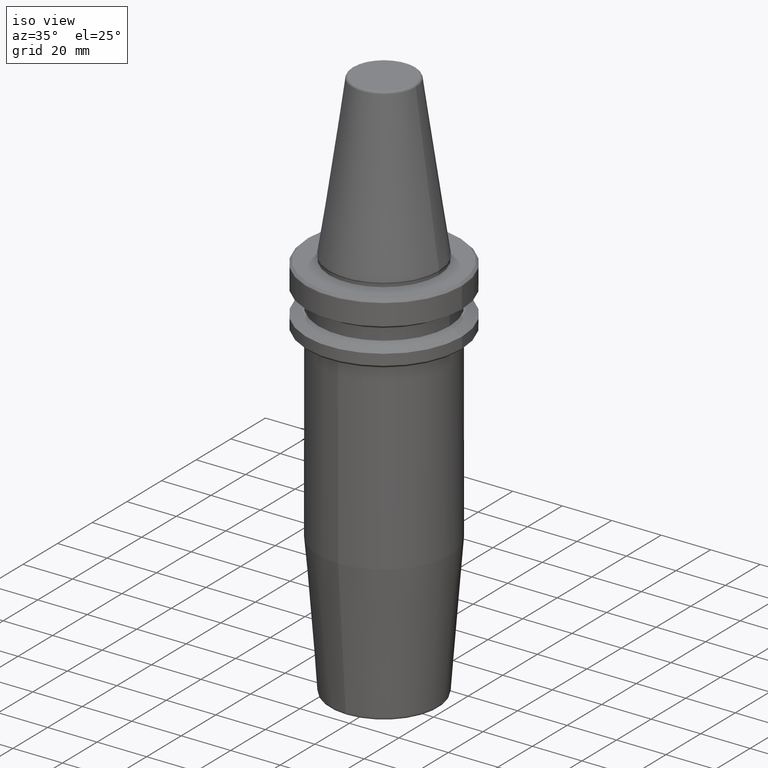
[diagram: clean part render]
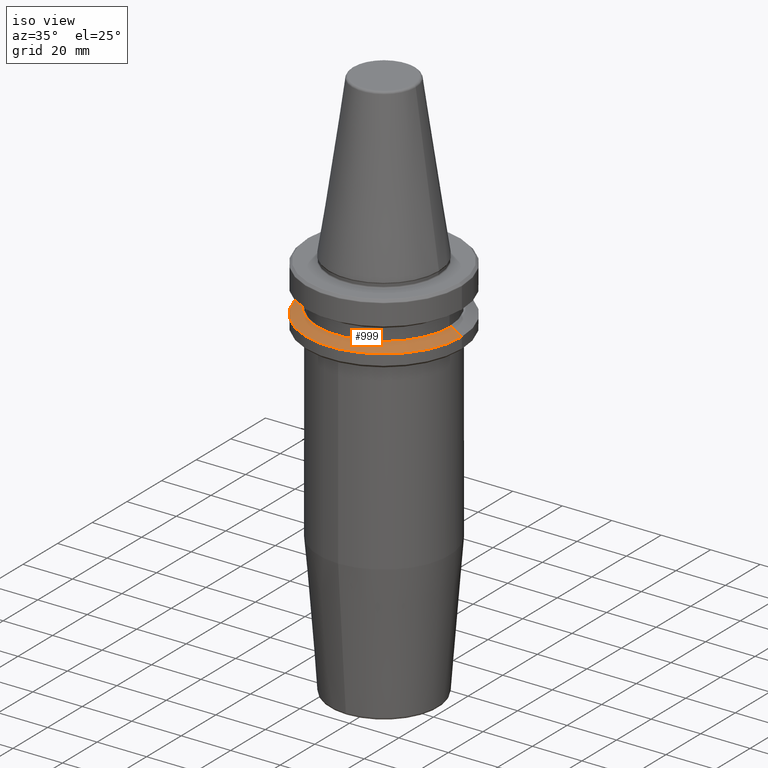
[diagram: same view with one face highlighted and labeled with its STEP entity id]
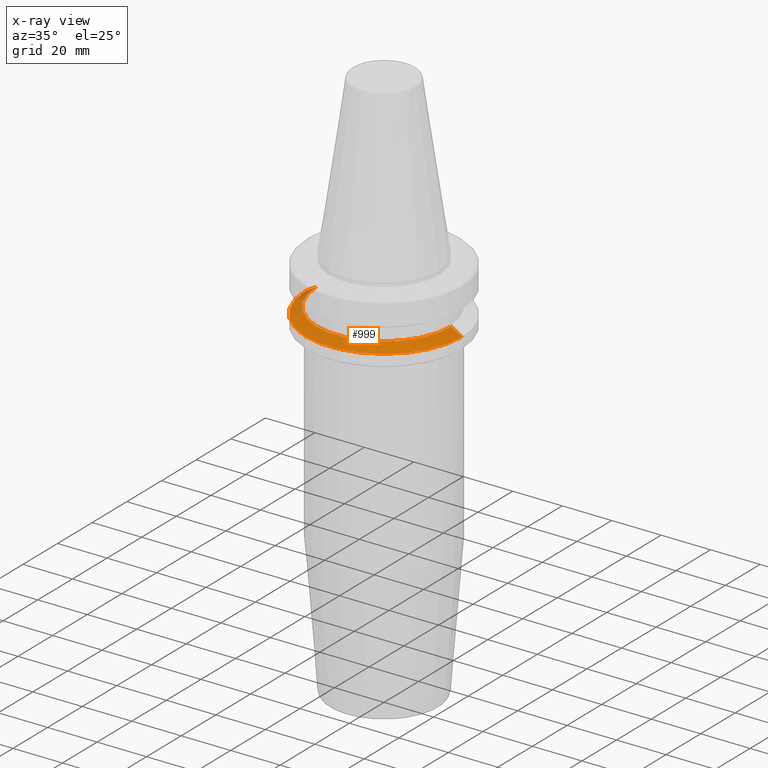
[diagram: x-ray of the same camera — body ghosted, the highlighted face saturated]
A machine part, iso view. The second image highlights one B-rep face of the part: STEP entity #999.
The next image is the same camera in x-ray: the body ghosted, the highlighted face saturated — about 3% of this face is hidden behind the body in this view.
In plain terms, the highlighted conical surface has half-angle 60 deg.
Its self-contained STEP definition (entity closure, byte-faithful):
#56 = CARTESIAN_POINT ( 'NONE',  ( -27.16962701892216700, 0.0000000000000000000, -19.10000000000000500 ) ) ;
#87 = EDGE_CURVE ( 'NONE', #1143, #503, #240, .T. ) ;
#115 = FACE_OUTER_BOUND ( 'NONE', #529, .T. ) ;
#118 = VECTOR ( 'NONE', #1191, 1000.000000000000000 ) ;
#240 = CIRCLE ( 'NONE', #562, 31.50000000000000000 ) ;
#299 = EDGE_CURVE ( 'NONE', #678, #503, #1175, .T. ) ;
#342 = DIRECTION ( 'NONE',  ( -1.000000000000000000, 0.0000000000000000000, 0.0000000000000000000 ) ) ;
#403 = AXIS2_PLACEMENT_3D ( 'NONE', #1121, #534, #1215 ) ;
#421 = CIRCLE ( 'NONE', #403, 27.16962701892216700 ) ;
#434 = ORIENTED_EDGE ( 'NONE', *, *, #299, .F. ) ;
#456 = CARTESIAN_POINT ( 'NONE',  ( -31.50000000000000000, 3.857637417314162700E-015, -21.60014200631675500 ) ) ;
#503 = VERTEX_POINT ( 'NONE', #740 ) ;
#507 = CARTESIAN_POINT ( 'NONE',  ( 27.16962701892216700, 3.327319676275047600E-015, -19.10000000000000500 ) ) ;
#523 = CARTESIAN_POINT ( 'NONE',  ( -27.16962701892216700, 0.0000000000000000000, -19.10000000000000500 ) ) ;
#529 = EDGE_LOOP ( 'NONE', ( #434, #615, #568, #893 ) ) ;
#534 = DIRECTION ( 'NONE',  ( -0.0000000000000000000, -0.0000000000000000000, 1.000000000000000000 ) ) ;
#562 = AXIS2_PLACEMENT_3D ( 'NONE', #997, #1227, #1212 ) ;
#568 = ORIENTED_EDGE ( 'NONE', *, *, #1176, .T. ) ;
#575 = LINE ( 'NONE', #56, #772 ) ;
#615 = ORIENTED_EDGE ( 'NONE', *, *, #975, .F. ) ;
#636 = CONICAL_SURFACE ( 'NONE', #667, 27.16962701892216700, 1.047197551196601200 ) ;
#667 = AXIS2_PLACEMENT_3D ( 'NONE', #1218, #1126, #342 ) ;
#678 = VERTEX_POINT ( 'NONE', #965 ) ;
#740 = CARTESIAN_POINT ( 'NONE',  ( 31.50000000000000000, 0.0000000000000000000, -21.60014200631675500 ) ) ;
#772 = VECTOR ( 'NONE', #1242, 1000.000000000000000 ) ;
#893 = ORIENTED_EDGE ( 'NONE', *, *, #87, .T. ) ;
#917 = VERTEX_POINT ( 'NONE', #523 ) ;
#965 = CARTESIAN_POINT ( 'NONE',  ( 27.16962701892216700, 3.592478546794605500E-015, -19.10000000000000500 ) ) ;
#975 = EDGE_CURVE ( 'NONE', #917, #678, #421, .T. ) ;
#997 = CARTESIAN_POINT ( 'NONE',  ( 0.0000000000000000000, 0.0000000000000000000, -21.60014200631675500 ) ) ;
#999 = ADVANCED_FACE ( 'NONE', ( #115 ), #636, .T. ) ;
#1121 = CARTESIAN_POINT ( 'NONE',  ( 0.0000000000000000000, 0.0000000000000000000, -19.10000000000000500 ) ) ;
#1126 = DIRECTION ( 'NONE',  ( 0.0000000000000000000, 0.0000000000000000000, -1.000000000000000000 ) ) ;
#1143 = VERTEX_POINT ( 'NONE', #456 ) ;
#1175 = LINE ( 'NONE', #507, #118 ) ;
#1176 = EDGE_CURVE ( 'NONE', #917, #1143, #575, .T. ) ;
#1191 = DIRECTION ( 'NONE',  ( 0.8660254037844403700, 1.060575238724909000E-016, -0.4999999999999970000 ) ) ;
#1212 = DIRECTION ( 'NONE',  ( 1.000000000000000000, 0.0000000000000000000, 0.0000000000000000000 ) ) ;
#1215 = DIRECTION ( 'NONE',  ( 1.000000000000000000, 0.0000000000000000000, 0.0000000000000000000 ) ) ;
#1218 = CARTESIAN_POINT ( 'NONE',  ( 0.0000000000000000000, 0.0000000000000000000, -19.10000000000000500 ) ) ;
#1227 = DIRECTION ( 'NONE',  ( -0.0000000000000000000, -0.0000000000000000000, 1.000000000000000000 ) ) ;
#1242 = DIRECTION ( 'NONE',  ( -0.8660254037844403700, 0.0000000000000000000, -0.4999999999999970000 ) ) ;